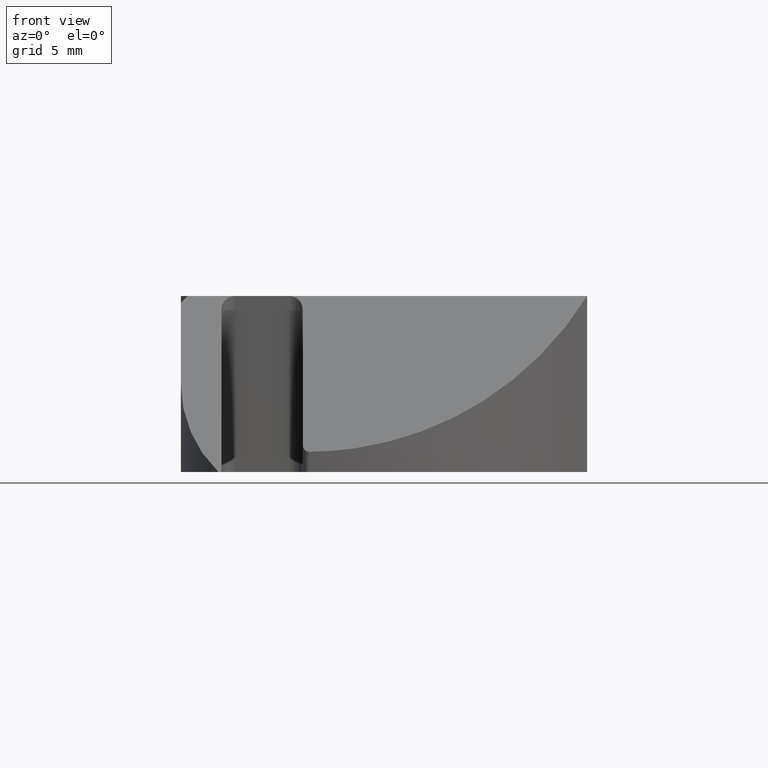
[diagram: clean part render]
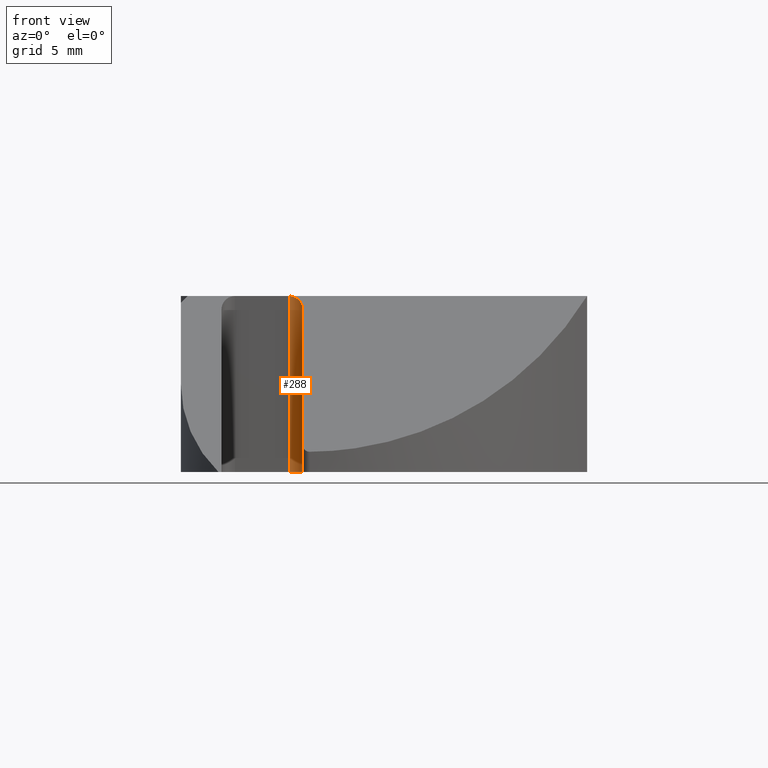
[diagram: same view with one face highlighted and labeled with its STEP entity id]
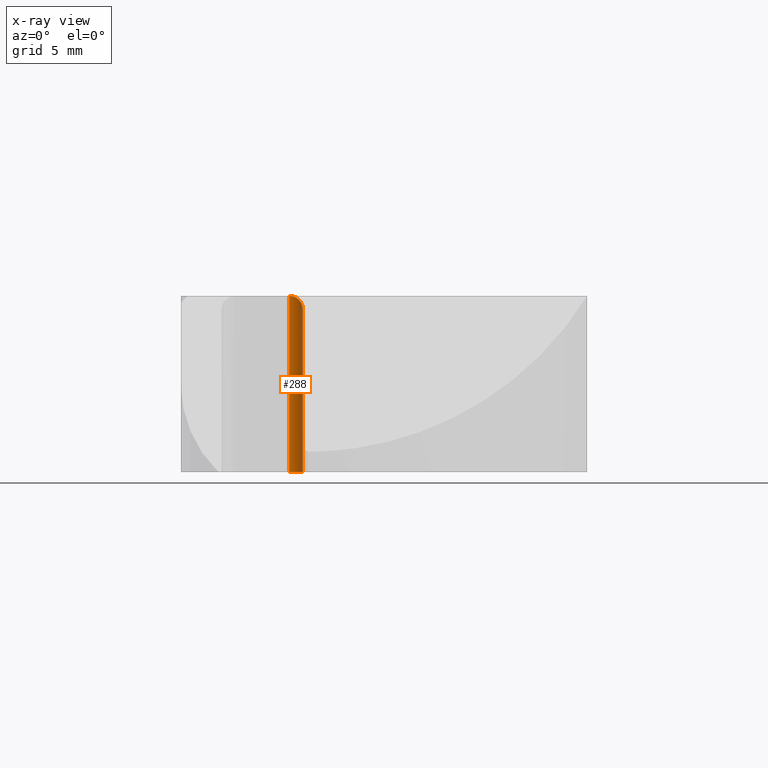
[diagram: x-ray of the same camera — body ghosted, the highlighted face saturated]
A machine part, front view. The second image highlights one B-rep face of the part: STEP entity #288.
The next image is the same camera in x-ray: the body ghosted, the highlighted face saturated — about 0% of this face is hidden behind the body in this view.
In plain terms, the highlighted cylindrical surface (edge-blend (fillet) strip) has radius 1 mm, axis along (-0, 0, -1).
Its self-contained STEP definition (entity closure, byte-faithful):
#230=CARTESIAN_POINT('',(-21.999999999963734,-13.749999999974078,0.0));
#231=VERTEX_POINT('',#230);
#238=CARTESIAN_POINT('',(-21.999999999963734,-13.749999999974078,12.999999999999773));
#239=VERTEX_POINT('',#238);
#240=CARTESIAN_POINT('',(-21.999999999963734,-13.749999999974078,0.0));
#241=DIRECTION('',(0.0,0.0,1.0));
#242=VECTOR('',#241,12.999999999999773);
#243=LINE('',#240,#242);
#244=EDGE_CURVE('',#231,#239,#243,.T.);
#256=CARTESIAN_POINT('',(-21.999999999963734,-14.749999999974078,0.0));
#257=DIRECTION('',(-1.499760E-032,1.224647E-016,-1.0));
#258=DIRECTION('',(-6.123234E-017,1.0,1.224647E-016));
#259=AXIS2_PLACEMENT_3D('',#256,#257,#258);
#260=CYLINDRICAL_SURFACE('',#259,1.0);
#261=CARTESIAN_POINT('',(-20.999999999963734,-14.749999999974078,0.0));
#262=VERTEX_POINT('',#261);
#263=CARTESIAN_POINT('',(-21.999999999963734,-14.749999999974078,0.0));
#264=DIRECTION('',(-1.499760E-032,1.224647E-016,-1.0));
#265=DIRECTION('',(1.0,1.224647E-016,0.0));
#266=AXIS2_PLACEMENT_3D('',#263,#264,#265);
#267=CIRCLE('',#266,1.0);
#268=EDGE_CURVE('',#231,#262,#267,.T.);
#269=ORIENTED_EDGE('',*,*,#268,.T.);
#270=CARTESIAN_POINT('',(-20.999999999963734,-14.749999999974078,12.000000000025807));
#271=VERTEX_POINT('',#270);
#272=CARTESIAN_POINT('',(-20.999999999963734,-14.749999999974078,0.0));
#273=DIRECTION('',(0.0,0.0,1.0));
#274=VECTOR('',#273,12.000000000025738);
#275=LINE('',#272,#274);
#276=EDGE_CURVE('',#262,#271,#275,.T.);
#277=ORIENTED_EDGE('',*,*,#276,.T.);
#278=CARTESIAN_POINT('',(-21.999999999963737,-14.749999999974078,12.000000000025807));
#279=DIRECTION('',(8.659561E-017,-0.707106781186541,0.707106781186554));
#280=DIRECTION('',(-8.659561E-017,0.707106781186554,0.707106781186541));
#281=AXIS2_PLACEMENT_3D('',#278,#279,#280);
#282=ELLIPSE('',#281,1.414213562373083,1.0);
#283=EDGE_CURVE('',#271,#239,#282,.T.);
#284=ORIENTED_EDGE('',*,*,#283,.T.);
#285=ORIENTED_EDGE('',*,*,#244,.F.);
#286=EDGE_LOOP('',(#269,#277,#284,#285));
#287=FACE_OUTER_BOUND('',#286,.T.);
#288=ADVANCED_FACE('',(#287),#260,.F.);